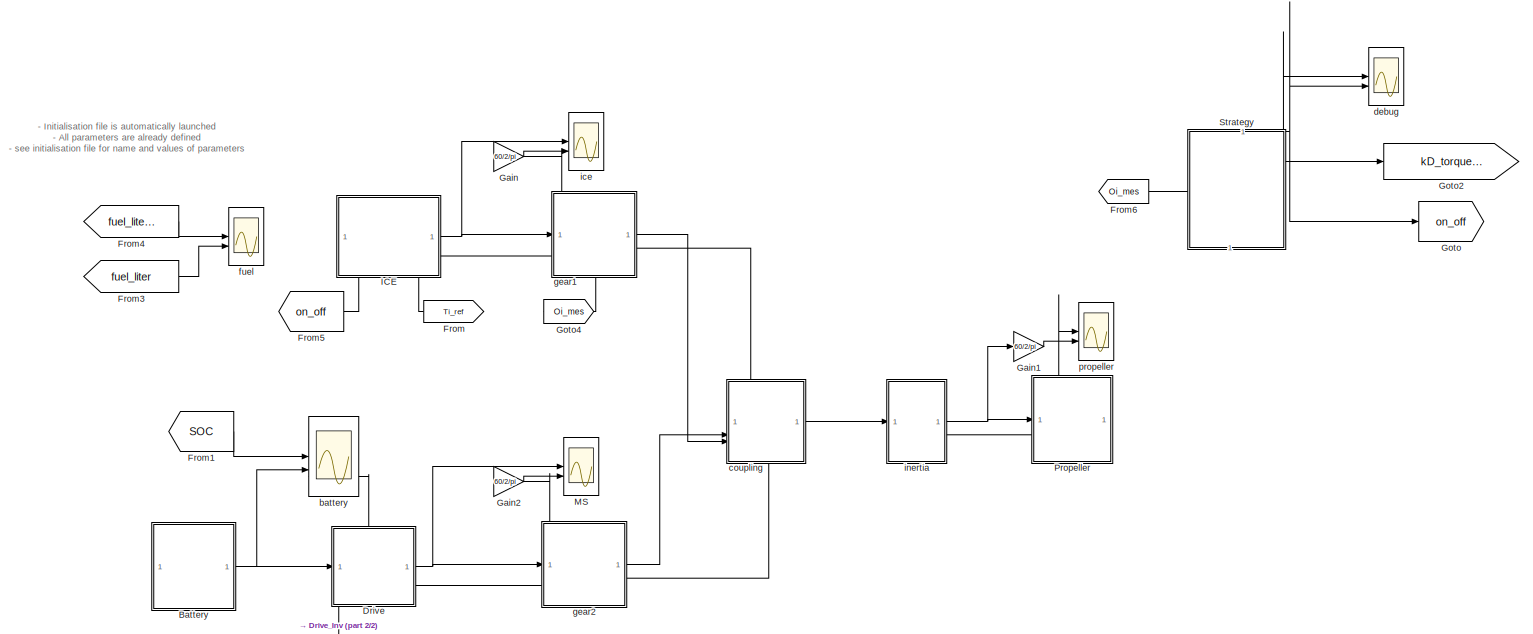
[diagram: root canvas - part 1/2, full width, middle band]
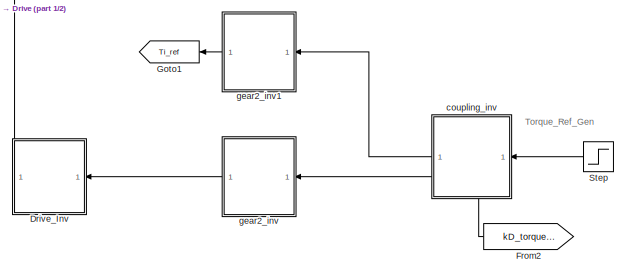
[diagram: root canvas - part 2/2, bottom center region]
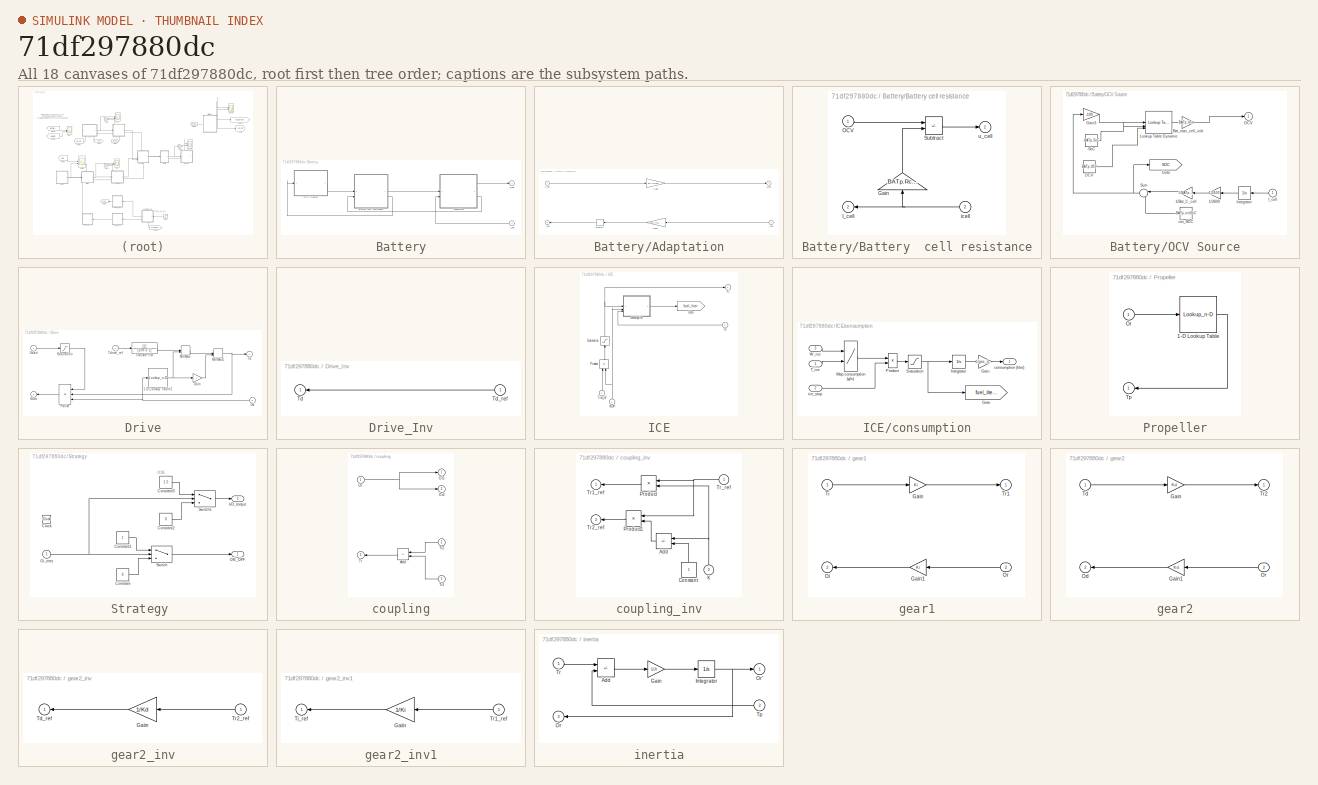
[diagram: thumbnail index - all 18 canvases of the model, root first then tree order]
MODEL slx_71df297880dc
KIND model
CONFIG AbsTol = auto
CONFIG EnableMultiTasking = on
CONFIG FixedStep = 1e-3
CONFIG InitFcn = initialisation
CONFIG MaxStep = 0.1
CONFIG MinStep = auto
CONFIG RelTol = 1e-3
CONFIG SampleTimeConstraint = Unconstrained
CONFIG SolverName = ode45
CONFIG StartTime = 0
CONFIG StopTime = 200
BLOCK [SubSystem] Battery
  NameLocation = top
  PortSchema = {"entries":[{"content":{"sides":[{"content":{"connectorIds":[]},"type":"ConnectorPlacement.EquallySpacedRectSide","uuid":"04262c61-29d9-4e8b-9c1d-2ecf83c8944f"},{"content":{"connectorIds":["Out1","In1"],"side":"RIGHT"},"type":"ConnectorPlacement.EquallySpacedRectSide","uuid":"634c1e8e-7966-43a8-9b77-1c6e134a407e"},{"content":{"connectorIds":[],"side":"TOP"},"type":"ConnectorPlacement.EquallySpaced...<+385ch>
BLOCK [SubSystem] Battery/Adaptation
  AncestorBlock = simulink/REM/EA
BLOCK [Gain] Battery/Adaptation/Gain
  Gain = BATp.ns
BLOCK [Gain] Battery/Adaptation/Gain1
  Gain = 1/BATp.np
  NameLocation = top
BLOCK [Inport] Battery/Adaptation/I_bat
  NameLocation = top
  Port = 2
BLOCK [Memory] Battery/Adaptation/Memory
BLOCK [Outport] Battery/Adaptation/i_cell
  InitialOutput = 0
  NameLocation = top
  Port = 2
BLOCK [Outport] Battery/Adaptation/u_bat
  InitialOutput = 0
BLOCK [Inport] Battery/Adaptation/u_cell
BLOCK [SubSystem] Battery/Battery  cell resistance
  AncestorBlock = simulink/REM/EC Elec
BLOCK [Gain] Battery/Battery  cell resistance/Gain
  Gain = BATp.Rcell
  NameLocation = right
BLOCK [Outport] Battery/Battery  cell resistance/I_cell
  InitialOutput = 0
  NameLocation = top
  Port = 2
BLOCK [Inport] Battery/Battery  cell resistance/OCV
BLOCK [Sum] Battery/Battery  cell resistance/Subtract
  IconShape = rectangular
  Inputs = +-
BLOCK [Inport] Battery/Battery  cell resistance/icell
  NameLocation = top
  Port = 2
BLOCK [Outport] Battery/Battery  cell resistance/u_cell
  InitialOutput = 0
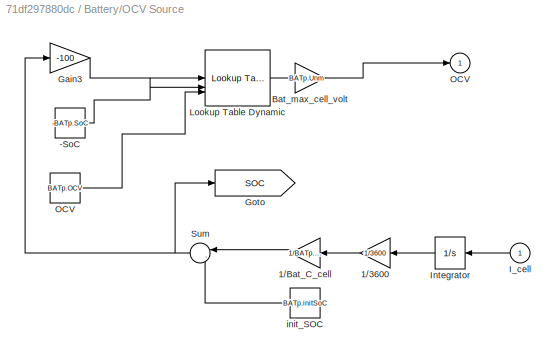
BLOCK [SubSystem] Battery/OCV Source
  AncestorBlock = simulink/REM/SE
BLOCK [Constant] Battery/OCV Source/-SoC
  Value = -BATp.SoC
BLOCK [Gain] Battery/OCV Source/1//3600
  Gain = 1/3600
  NameLocation = top
BLOCK [Gain] Battery/OCV Source/1//Bat_C_cell
  Gain = 1/BATp.Ccell
  NameLocation = top
BLOCK [Gain] Battery/OCV Source/Bat_max_cell_volt
  Gain = BATp.Unm
  NameLocation = top
BLOCK [Gain] Battery/OCV Source/Gain3
  Gain = -100
BLOCK [Goto] Battery/OCV Source/Goto
  GotoTag = SOC
  TagVisibility = global
BLOCK [Inport] Battery/OCV Source/I_cell 
  NameLocation = top
BLOCK [Integrator] Battery/OCV Source/Integrator
  NameLocation = top
BLOCK [Reference] Battery/OCV Source/Lookup Table Dynamic  REF=simulink/Lookup
Tables/Lookup
Table
Dynamic
  SourceBlock = simulink/Lookup\nTables/Lookup\nTable\nDynamic
  SourceType = Lookup Table Dynamic
BLOCK [Outport] Battery/OCV Source/OCV
  InitialOutput = 0
BLOCK [Constant] Battery/OCV Source/OCV 
  Value = BATp.OCV
BLOCK [Sum] Battery/OCV Source/Sum
  Inputs = |-+
  NameLocation = top
BLOCK [Constant] Battery/OCV Source/init_SOC
  NameLocation = top
  Value = BATp.initSoC
BLOCK [Inport] Battery/i_bat
  NameLocation = top
BLOCK [Outport] Battery/u_bat
  InitialOutput = 0
  NameLocation = top
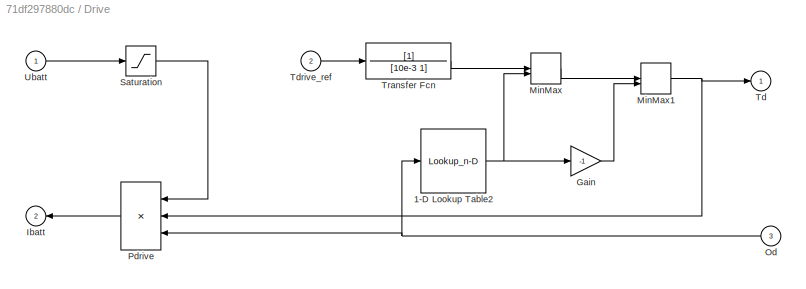
BLOCK [SubSystem] Drive
  PortSchema = {"entries":[{"content":{"sides":[{"content":{"connectorIds":["In1","Out2"]},"type":"ConnectorPlacement.EquallySpacedRectSide","uuid":"0136f92c-2474-4b15-9e94-a810dbb8344b"},{"content":{"connectorIds":["Out1","In3"],"side":"RIGHT"},"type":"ConnectorPlacement.EquallySpacedRectSide","uuid":"03ae7c30-e7d0-47d2-befe-60de862c4bfe"},{"content":{"connectorIds":[],"side":"TOP"},"type":"ConnectorPlacement.E...<+546ch>
BLOCK [Lookup_n-D] Drive/1-D Lookup Table2
  BreakpointsForDimension1 = EMp.Odrive
  InputPortMap = u0
  InternalRulePriority = Speed
  NumberOfTableDimensions = 1
  RndMeth = Simplest
  Table = EMp.Tmax
BLOCK [Gain] Drive/Gain
  Gain = -1
BLOCK [Outport] Drive/Ibatt
  InitialOutput = 0
  Port = 2
  VectorParamsAs1DForOutWhenUnconnected = off
BLOCK [MinMax] Drive/MinMax
  Inputs = 2
BLOCK [MinMax] Drive/MinMax1
  Function = max
  Inputs = 2
BLOCK [Inport] Drive/Od
  Port = 3
BLOCK [Product] Drive/Pdrive
  Inputs = /**
  NameLocation = top
BLOCK [Saturate] Drive/Saturation
  LowerLimit = 10.0
  UpperLimit = Inf
BLOCK [Outport] Drive/Td
  InitialOutput = 0
  VectorParamsAs1DForOutWhenUnconnected = off
BLOCK [Inport] Drive/Tdrive_ref
  NameLocation = top
  Port = 2
BLOCK [TransferFcn] Drive/Transfer Fcn
  Denominator = [10e-3 1]
BLOCK [Inport] Drive/Ubatt
BLOCK [SubSystem] Drive_Inv
  PortSchema = {"entries":[{"content":{"sides":[{"content":{"connectorIds":["In1"]},"type":"ConnectorPlacement.EquallySpacedRectSide","uuid":"04262c61-29d9-4e8b-9c1d-2ecf83c8944f"},{"content":{"connectorIds":[],"side":"RIGHT"},"type":"ConnectorPlacement.EquallySpacedRectSide","uuid":"634c1e8e-7966-43a8-9b77-1c6e134a407e"},{"content":{"connectorIds":["Out1"],"side":"TOP"},"type":"ConnectorPlacement.EquallySpacedR...<+384ch>
BLOCK [Outport] Drive_Inv/Td
  InitialOutput = 0
  VectorParamsAs1DForOutWhenUnconnected = off
BLOCK [Inport] Drive_Inv/Td_ref
  NameLocation = top
BLOCK [From] From
  GotoTag = Ti_ref
  TagVisibility = global
BLOCK [From] From1
  GotoTag = SOC
  TagVisibility = global
BLOCK [From] From2
  GotoTag = kD_torque_ref
  NameLocation = top
  TagVisibility = global
BLOCK [From] From3
  GotoTag = fuel_liter
  TagVisibility = global
BLOCK [From] From4
  GotoTag = fuel_liter_gps
  TagVisibility = global
BLOCK [From] From5
  GotoTag = on_off
  TagVisibility = global
BLOCK [From] From6
  GotoTag = Oi_mes
  TagVisibility = global
BLOCK [Gain] Gain
  Gain = 60/2/pi
BLOCK [Gain] Gain1
  Gain = 60/2/pi
BLOCK [Gain] Gain2
  Gain = 60/2/pi
BLOCK [Goto] Goto
  GotoTag = on_off
  TagVisibility = global
BLOCK [Goto] Goto1
  GotoTag = Ti_ref
  NameLocation = top
  TagVisibility = global
BLOCK [Goto] Goto2
  GotoTag = kD_torque_ref
  TagVisibility = global
BLOCK [Goto] Goto4
  GotoTag = Oi_mes
  TagVisibility = global
BLOCK [SubSystem] ICE
  PortSchema = {"entries":[{"content":{"sides":[{"content":{"connectorIds":[]},"type":"ConnectorPlacement.EquallySpacedRectSide","uuid":"c473ca53-b8b5-4bc1-98f4-3eae767e6b93"},{"content":{"connectorIds":["Out1","In3"],"side":"RIGHT"},"type":"ConnectorPlacement.EquallySpacedRectSide","uuid":"3221b5d7-f1e1-4c42-88b5-7a99972d45da"},{"content":{"connectorIds":[],"side":"TOP"},"type":"ConnectorPlacement.EquallySpaced...<+540ch>
BLOCK [Goto] ICE/Goto
  GotoTag = fuel_liter
  TagVisibility = global
BLOCK [Inport] ICE/Oi
  Port = 3
BLOCK [Product] ICE/Product
  NameLocation = right
  RndMeth = Zero
BLOCK [Saturate] ICE/Saturation
  LowerLimit = 0
  NameLocation = right
  UpperLimit = 102
BLOCK [Outport] ICE/Ti
  InitialOutput = 0
  NameLocation = top
  VectorParamsAs1DForOutWhenUnconnected = off
BLOCK [Inport] ICE/Tice_ref
  NameLocation = left
  Port = 2
BLOCK [SubSystem] ICE/consumption
BLOCK [Gain] ICE/consumption/Gain
  Gain = 1/gas_dens
  OutDataTypeStr = Inherit: Same as input
  ParamDataTypeStr = Inherit: Same as input
  SaturateOnIntegerOverflow = on
BLOCK [Goto] ICE/consumption/Goto
  GotoTag = fuel_liter_gps
  TagVisibility = global
BLOCK [Integrator] ICE/consumption/Integrator
  LowerSaturationLimit = 0
BLOCK [Lookup2D] ICE/consumption/Map consumption (g//s)
  ColumnIndex = ICE.Torque
  RowIndex = ICE.Omega
  Table = ICE.Fuel_consumption
BLOCK [Product] ICE/consumption/Product
  RndMeth = Zero
BLOCK [Saturate] ICE/consumption/Saturation
  LowerLimit = 0
  UpperLimit = Inf
BLOCK [Inport] ICE/consumption/T_ice
BLOCK [Inport] ICE/consumption/W_ice
  NameLocation = top
  Port = 3
BLOCK [Outport] ICE/consumption/consumption (liter)
  InitialOutput = 0
  VectorParamsAs1DForOutWhenUnconnected = off
BLOCK [Inport] ICE/consumption/ice_stop
  Port = 2
BLOCK [Inport] ICE/on_off
  NameLocation = right
BLOCK [Scope] MS
  ActiveDisplayYMaximum = 46.04942
  ActiveDisplayYMinimum = -14.00192
  DataLoggingVariableName = ScopeData1
  Floating = off
  GraphicalSettings = {"GraphicalSettings":{"LegacySettings":true,"Style":{"AxesScalingProperties":{"ScaleAxesLimitsAtStop":false},"Style":{"AxesColor":"[0 0 0]","ChannelNames":["",""],"ColorOrder":"[1 1 0.0666666666666667;0.0745098039215686 0.623529411764706 1;1 0.411764705882353 0.16078431372549;0.392156862745098 0.831372549019608 0.0745098039215686;0.717647058823529 0.274509803921569 1;0.0588235294117647 1 1;1 0.074...<+455ch>
  LayoutDimensionsString = [2 1]
  MultipleDisplayCache = [{"MaxYLimMag":46.04942,"MaxYLimReal":46.04942,"MinYLimMag":0,"MinYLimReal":-14.00192,"PlotAsMagnitudePhase":false,"ShowGrid":true,"ShowLegend":false,"Title":"Torque (Nm)","YLabel":""},{"MaxYLimMag":10,"MaxYLimReal":3389.30467,"MinYLimMag":0,"MinYLimReal":3348.13549,"PlotAsMagnitudePhase":false,"ShowGrid":true,"ShowLegend":false,"Title":"Angular Velocity (RPM)","YLabel":""}]
  NumInputPorts = 2
  Title = Torque (Nm)
  WasSavedAsWebScope = on
  WindowPosition = [2653 314 560 420]
BLOCK [SubSystem] Propeller
  PortSchema = {"entries":[{"content":{"sides":[{"content":{"connectorIds":["In1","Out1"]},"type":"ConnectorPlacement.EquallySpacedRectSide","uuid":"04262c61-29d9-4e8b-9c1d-2ecf83c8944f"},{"content":{"connectorIds":[],"side":"RIGHT"},"type":"ConnectorPlacement.EquallySpacedRectSide","uuid":"634c1e8e-7966-43a8-9b77-1c6e134a407e"},{"content":{"connectorIds":[],"side":"TOP"},"type":"ConnectorPlacement.EquallySpaced...<+385ch>
BLOCK [Lookup_n-D] Propeller/1-D Lookup Table
  BreakpointsForDimension1 = Oprop
  InputPortMap = u0
  InternalRulePriority = Speed
  NumberOfTableDimensions = 1
  RndMeth = Simplest
  Table = Tprop
BLOCK [Inport] Propeller/Or
BLOCK [Outport] Propeller/Tp
  InitialOutput = 0
  NameLocation = top
  VectorParamsAs1DForOutWhenUnconnected = off
BLOCK [Step] Step
  After = 80
  NameLocation = top
  SampleTime = 0
  Time = 10
BLOCK [SubSystem] Strategy 
  PortSchema = {"entries":[{"content":{"sides":[{"content":{},"type":"ConnectorPlacement.EquallySpacedRectSide","uuid":"63c31aab-ea26-4764-93d2-efdab5f0aed9"},{"content":{"side":"RIGHT"},"type":"ConnectorPlacement.EquallySpacedRectSide","uuid":"5340923b-eca1-4381-b70a-945b4f8fbb4d"},{"content":{"connectorIds":["In1"],"side":"TOP"},"type":"ConnectorPlacement.EquallySpacedRectSide","uuid":"634b20be-49b0-444c-aa49-...<+356ch>
BLOCK [Clock] Strategy /Clock
BLOCK [Constant] Strategy /Constant
  Value = 0
BLOCK [Constant] Strategy /Constant1
BLOCK [Constant] Strategy /Constant2
  Value = 0
BLOCK [Constant] Strategy /Constant3
  Value = 1.5
BLOCK [Outport] Strategy /ON_OFF
BLOCK [Inport] Strategy /Oi_mes
BLOCK [Switch] Strategy /Switch
  InputSameDT = off
  SaturateOnIntegerOverflow = off
  Threshold = 104.7
BLOCK [Switch] Strategy /Switch1
  InputSameDT = off
  SaturateOnIntegerOverflow = off
  Threshold = 104.7
BLOCK [Outport] Strategy /kD_torque
  Port = 2
BLOCK [Scope] battery
  ActiveDisplayYMaximum = 0.91486100012820593
  ActiveDisplayYMinimum = 0.89921177350309167
  Floating = off
  GraphicalSettings = {"Style":{"BackgroundColor":[0.12941176470588237,0.12941176470588237,0.12941176470588237],"AxesColor":[0.07058823529411765,0.07058823529411765,0.07058823529411765],"LabelsColor":[0.8509803921568627,0.8509803921568627,0.8509803921568627],"PreserveColors":false,"Visible":[true,true,true],"LineStyle":["-","-","-"],"LineWidth":[1.5,1.5,1.5],"BarWidth":[0.9,0.9,0.9],"LineColor":["auto","auto","auto"],"...<+2884ch>
  LayoutDimensionsString = [3 1]
  MultipleDisplayCache = [{"MaxYLimMag":0.90908566757220111,"MaxYLimReal":0.91486100012820593,"MinYLimMag":0.89897390048017589,"MinYLimReal":0.89921177350309167,"PlotAsMagnitudePhase":false,"ShowGrid":true,"ShowLegend":false,"Title":"SOC (-)","YLabel":""},{"MaxYLimMag":387.42316799296452,"MaxYLimReal":387.42316799296452,"MinYLimMag":383.356557148129,"MinYLimReal":383.356557148129,"PlotAsMagnitudePhase":false,"ShowGrid":tr...<+281ch>
  NumInputPorts = 3
  ScopeFrameLocation = window
  Title = SOC (-)
  Visible = on
  WasSavedAsWebScope = on
  WindowPosition = [422.000000,272.000000,560.000000,420.000000,]
BLOCK [SubSystem] coupling
  PortSchema = {"entries":[{"content":{"sides":[{"content":{"connectorIds":["In1","Out3"]},"type":"ConnectorPlacement.EquallySpacedRectSide","uuid":"a0cc6eb3-0f35-4a31-afc0-a3cae9b9d5bb"},{"content":{"connectorIds":["Out1","In2","Out2","In3"],"side":"RIGHT"},"type":"ConnectorPlacement.EquallySpacedRectSide","uuid":"f0fc86c1-6f18-402b-9eea-d081ace87e62"},{"content":{"connectorIds":[],"side":"TOP"},"type":"Connect...<+266ch>
BLOCK [Sum] coupling/Add
  IconShape = rectangular
  NameLocation = top
BLOCK [Inport] coupling/Or
BLOCK [Outport] coupling/Or1
  InitialOutput = 0
  VectorParamsAs1DForOutWhenUnconnected = off
BLOCK [Outport] coupling/Or2
  InitialOutput = 0
  Port = 2
  VectorParamsAs1DForOutWhenUnconnected = off
BLOCK [Outport] coupling/Tr
  InitialOutput = 0
  Port = 3
  VectorParamsAs1DForOutWhenUnconnected = off
BLOCK [Inport] coupling/Tr1
  NameLocation = top
  Port = 3
BLOCK [Inport] coupling/Tr2
  NameLocation = top
  Port = 2
BLOCK [SubSystem] coupling_inv
  NameLocation = top
  PortSchema = {"entries":[{"content":{"sides":[{"content":{"connectorIds":["In1"]},"type":"ConnectorPlacement.EquallySpacedRectSide","uuid":"b9cb5e2e-d323-42b7-849c-39be921832eb"},{"content":{"connectorIds":["Out1","Out2"],"side":"RIGHT"},"type":"ConnectorPlacement.EquallySpacedRectSide","uuid":"457911f2-4e07-4896-a1c0-9331a364b989"},{"content":{"side":"TOP"},"type":"ConnectorPlacement.EquallySpacedRectSide","u...<+378ch>
BLOCK [Sum] coupling_inv/Add
  IconShape = rectangular
  Inputs = -+
  NameLocation = top
BLOCK [Constant] coupling_inv/Constant
  NameLocation = right
BLOCK [Inport] coupling_inv/K
  Port = 2
BLOCK [Product] coupling_inv/Product
  NameLocation = top
BLOCK [Product] coupling_inv/Product1
  NameLocation = top
BLOCK [Outport] coupling_inv/Tr1_ref
  InitialOutput = 0
BLOCK [Outport] coupling_inv/Tr2_ref
  InitialOutput = 0
  Port = 2
BLOCK [Inport] coupling_inv/Tr_ref
BLOCK [Scope] debug
  ActiveDisplayString = 2
  ActiveDisplayYMaximum = 1.1719714156079855
  ActiveDisplayYMinimum = -0.20615358439201459
  DataLoggingVariableName = ScopeData3
  Floating = off
  GraphicalSettings = {"Style":{"BackgroundColor":[0.12941176470588237,0.12941176470588237,0.12941176470588237],"AxesColor":[0.07058823529411765,0.07058823529411765,0.07058823529411765],"LabelsColor":[0.8509803921568627,0.8509803921568627,0.8509803921568627],"PreserveColors":false,"Visible":[true,true],"LineStyle":["-","-"],"LineWidth":[1.5,1.5],"BarWidth":[0.9,0.9],"LineColor":["auto","auto"],"LineFaceAlpha":[1,1],"Li...<+2384ch>
  LayoutDimensionsString = [2 1]
  MultipleDisplayCache = [{"MaxYLimMag":0.9,"MaxYLimReal":0.9,"MinYLimMag":0,"MinYLimReal":-0.099999999999999978,"PlotAsMagnitudePhase":false,"ShowGrid":true,"ShowLegend":false,"Title":"K motors","YLabel":""},{"MaxYLimMag":1.125,"MaxYLimReal":1.1719714156079855,"MinYLimMag":0,"MinYLimReal":-0.20615358439201459,"PlotAsMagnitudePhase":false,"ShowGrid":true,"ShowLegend":false,"Title":"ICE_enabled","YLabel":""}]
  NumInputPorts = 2
  ScopeFrameLocation = window
  Title = ICE_enabled
  WasSavedAsWebScope = on
  WindowPosition = [172.000000,63.000000,688.000000,697.000000,]
BLOCK [Scope] fuel
  ActiveDisplayYMaximum = 1.24215
  ActiveDisplayYMinimum = -0.13802
  DataLoggingVariableName = ScopeData1
  Floating = off
  GraphicalSettings = {"GraphicalSettings":{"LegacySettings":true,"Style":{"Style":{"AxesColor":"[0 0 0]","ChannelNames":["",""],"ColorOrder":"[1 1 0.0666666666666667;0.0745098039215686 0.623529411764706 1;1 0.411764705882353 0.16078431372549;0.392156862745098 0.831372549019608 0.0745098039215686;0.717647058823529 0.274509803921569 1;0.0588235294117647 1 1;1 0.0745098039215686 0.650980392156863]","CurrentConfiguration"...<+374ch>
  LayoutDimensionsString = [2 1]
  MultipleDisplayCache = [{"MaxYLimMag":2.24415,"MaxYLimReal":1.24215,"MinYLimMag":0,"MinYLimReal":-0.13802,"PlotAsMagnitudePhase":false,"ShowGrid":true,"ShowLegend":false,"Title":"Fuel cons. (g\/s)","YLabel":""},{"MaxYLimMag":0.27339,"MaxYLimReal":0.27339,"MinYLimMag":0,"MinYLimReal":-0.03038,"PlotAsMagnitudePhase":false,"ShowGrid":true,"ShowLegend":false,"Title":"Fuel Cons (l)","YLabel":""}]
  NumInputPorts = 2
  Title = Fuel cons. (g/s)
  WasSavedAsWebScope = on
  WindowPosition = [2889 270 560 420]
BLOCK [SubSystem] gear1
  PortSchema = {"entries":[{"content":{"sides":[{"content":{"connectorIds":["In1","Out2"]},"type":"ConnectorPlacement.EquallySpacedRectSide","uuid":"326d5ef2-2214-4908-8fc2-a754f41fc898"},{"content":{"connectorIds":["Out1","In2"],"side":"RIGHT"},"type":"ConnectorPlacement.EquallySpacedRectSide","uuid":"fc3c24cf-fc6d-45b2-8f10-8df449b5a24f"},{"content":{"connectorIds":[],"side":"TOP"},"type":"ConnectorPlacement.E...<+397ch>
BLOCK [Gain] gear1/Gain
  Gain = Ki
BLOCK [Gain] gear1/Gain1
  Gain = Ki
  NameLocation = top
BLOCK [Outport] gear1/Oi
  InitialOutput = 0
  Port = 2
  VectorParamsAs1DForOutWhenUnconnected = off
BLOCK [Inport] gear1/Or
  Port = 2
BLOCK [Inport] gear1/Ti
BLOCK [Outport] gear1/Tr1
  InitialOutput = 0
  VectorParamsAs1DForOutWhenUnconnected = off
BLOCK [SubSystem] gear2
  PortSchema = {"entries":[{"content":{"sides":[{"content":{"connectorIds":["In1","Out2"]},"type":"ConnectorPlacement.EquallySpacedRectSide","uuid":"326d5ef2-2214-4908-8fc2-a754f41fc898"},{"content":{"connectorIds":["Out1","In2"],"side":"RIGHT"},"type":"ConnectorPlacement.EquallySpacedRectSide","uuid":"fc3c24cf-fc6d-45b2-8f10-8df449b5a24f"},{"content":{"connectorIds":[],"side":"TOP"},"type":"ConnectorPlacement.E...<+397ch>
BLOCK [Gain] gear2/Gain
  Gain = Kd
BLOCK [Gain] gear2/Gain1
  Gain = Kd
  NameLocation = top
BLOCK [Outport] gear2/Od
  InitialOutput = 0
  Port = 2
  VectorParamsAs1DForOutWhenUnconnected = off
BLOCK [Inport] gear2/Or
  Port = 2
BLOCK [Inport] gear2/Td
BLOCK [Outport] gear2/Tr2
  InitialOutput = 0
  VectorParamsAs1DForOutWhenUnconnected = off
BLOCK [SubSystem] gear2_inv
BLOCK [Gain] gear2_inv/Gaiin
  Gain = 1/Kd
  NameLocation = top
BLOCK [Outport] gear2_inv/Td_ref
  InitialOutput = 0
  NameLocation = top
  VectorParamsAs1DForOutWhenUnconnected = off
BLOCK [Inport] gear2_inv/Tr2_ref
  NameLocation = top
BLOCK [SubSystem] gear2_inv1
BLOCK [Gain] gear2_inv1/Gaiin
  Gain = 1/Ki
  NameLocation = top
BLOCK [Outport] gear2_inv1/Ti_ref
  InitialOutput = 0
  NameLocation = top
  VectorParamsAs1DForOutWhenUnconnected = off
BLOCK [Inport] gear2_inv1/Tr1_ref
  NameLocation = top
BLOCK [Scope] ice
  ActiveDisplayYMaximum = 81
  ActiveDisplayYMinimum = -9
  DataLoggingVariableName = ScopeData1
  Floating = off
  GraphicalSettings = {"GraphicalSettings":{"LegacySettings":true,"Style":{"AxesScalingProperties":{"ScaleAxesLimitsAtStop":false},"Style":{"AxesColor":"[0 0 0]","ChannelNames":["",""],"ColorOrder":"[1 1 0.0666666666666667;0.0745098039215686 0.623529411764706 1;1 0.411764705882353 0.16078431372549;0.392156862745098 0.831372549019608 0.0745098039215686;0.717647058823529 0.274509803921569 1;0.0588235294117647 1 1;1 0.074...<+455ch>
  LayoutDimensionsString = [2 1]
  MultipleDisplayCache = [{"MaxYLimMag":101.25,"MaxYLimReal":81,"MinYLimMag":0,"MinYLimReal":-9,"PlotAsMagnitudePhase":false,"ShowGrid":true,"ShowLegend":false,"Title":"Torque (Nm)","YLabel":""},{"MaxYLimMag":2525.78111,"MaxYLimReal":2525.78111,"MinYLimMag":0,"MinYLimReal":-280.64235,"PlotAsMagnitudePhase":false,"ShowGrid":true,"ShowLegend":false,"Title":"Angular Velocity (RPM)","YLabel":""}]
  NumInputPorts = 2
  Title = Torque (Nm)
  WasSavedAsWebScope = on
  WindowPosition = [2067 171 688 697]
BLOCK [SubSystem] inertia
  PortSchema = {"entries":[{"content":{"sides":[{"content":{"connectorIds":["In1","Out2"]},"type":"ConnectorPlacement.EquallySpacedRectSide","uuid":"ce6d3bac-983c-4cc2-8cf0-29bd76c88970"},{"content":{"connectorIds":["Out1","In2"],"side":"RIGHT"},"type":"ConnectorPlacement.EquallySpacedRectSide","uuid":"5515666e-487b-4d04-97a1-137c298a6b81"},{"content":{"side":"TOP"},"type":"ConnectorPlacement.EquallySpacedRectSi...<+235ch>
BLOCK [Sum] inertia/Add
  IconShape = rectangular
  Inputs = +-
BLOCK [Gain] inertia/Gain
  Gain = 1/Jr
BLOCK [Integrator] inertia/Integrator
BLOCK [Outport] inertia/Or
  InitialOutput = 0
  NameLocation = top
  Port = 2
BLOCK [Outport] inertia/Or'
  InitialOutput = 0
  NameLocation = top
BLOCK [Inport] inertia/Tp
  NameLocation = top
  Port = 2
BLOCK [Inport] inertia/Tr
  NameLocation = top
BLOCK [Scope] propeller
  ActiveDisplayYMaximum = 89.999960896765117
  ActiveDisplayYMinimum = -9.9999956551961535
  DataLoggingVariableName = ScopeData2
  Floating = off
  GraphicalSettings = {"Style":{"BackgroundColor":[0.12941176470588237,0.12941176470588237,0.12941176470588237],"AxesColor":[0.07058823529411765,0.07058823529411765,0.07058823529411765],"LabelsColor":[0.8509803921568627,0.8509803921568627,0.8509803921568627],"PreserveColors":false,"Visible":[true,true],"LineStyle":["-","-"],"LineWidth":[1.5,1.5],"BarWidth":[0.9,0.9],"LineColor":["auto","auto"],"LineFaceAlpha":[1,1],"Li...<+2445ch>
  LayoutDimensionsString = [2 1]
  MultipleDisplayCache = [{"MaxYLimMag":89.999960896765117,"MaxYLimReal":89.999960896765117,"MinYLimMag":0,"MinYLimReal":-9.9999956551961535,"PlotAsMagnitudePhase":false,"ShowGrid":true,"ShowLegend":false,"Title":"Torque (Nm)","YLabel":""},{"MaxYLimMag":1892.8988737960206,"MaxYLimReal":1892.8988737960206,"MinYLimMag":0,"MinYLimReal":-210.32209708844667,"PlotAsMagnitudePhase":false,"ShowGrid":true,"ShowLegend":false,"Title...<+40ch>
  NumInputPorts = 2
  ScopeFrameLocation = window
  Title = Torque (Nm)
  WasSavedAsWebScope = on
  WindowPosition = [621.000000,66.000000,688.000000,697.000000,]
ANNOTATION (root): - Initialisation file is automatically launched - All parameters are already defined - see initialisation file for name and values of parameters
ANNOTATION (root): Torque_Ref_Gen
ANNOTATION Strategy : 0.95
LINE Battery/Adaptation:1 -> Battery/u_bat:1
LINE Battery/Adaptation:2 -> Battery/Battery  cell resistance:2
LINE Battery/Battery  cell resistance:1 -> Battery/Adaptation:1
LINE Battery/Battery  cell resistance:2 -> Battery/OCV Source:1
LINE Battery/OCV Source:1 -> Battery/Battery  cell resistance:1
LINE Battery/i_bat:1 -> Battery/Adaptation:2
NET Battery:1 -> Drive:1, battery:2
NET Drive/1-D Lookup Table2:1 -> Drive/Gain:1, Drive/MinMax:2
LINE Drive/Gain:1 -> Drive/MinMax1:2
NET Drive/MinMax1:1 -> Drive/Pdrive:2, Drive/Td:1
LINE Drive/MinMax:1 -> Drive/MinMax1:1
NET Drive/Od:1 -> Drive/1-D Lookup Table2:1, Drive/Pdrive:3
LINE Drive/Pdrive:1 -> Drive/Ibatt:1
LINE Drive/Saturation:1 -> Drive/Pdrive:1
LINE Drive/Tdrive_ref:1 -> Drive/Transfer Fcn:1
LINE Drive/Transfer Fcn:1 -> Drive/MinMax:1
LINE Drive/Ubatt:1 -> Drive/Saturation:1
NET Drive:1 -> MS:1, gear2:1
NET Drive:2 -> Battery:1, battery:3
LINE Drive_Inv/Td_ref:1 -> Drive_Inv/Td:1
LINE Drive_Inv:1 -> Drive:2
LINE From1:1 -> battery:1
LINE From2:1 -> coupling_inv:2
LINE From3:1 -> fuel:2
LINE From4:1 -> fuel:1
LINE From5:1 -> ICE:1
LINE From6:1 -> Strategy :1
LINE From:1 -> ICE:2
LINE Gain1:1 -> propeller:2
LINE Gain2:1 -> MS:2
LINE Gain:1 -> ice:2
LINE ICE/Oi:1 -> ICE/consumption:3
LINE ICE/Product:1 -> ICE/Saturation:1
NET ICE/Saturation:1 -> ICE/Ti:1, ICE/consumption:1
LINE ICE/Tice_ref:1 -> ICE/Product:1
LINE ICE/consumption/Gain:1 -> ICE/consumption/consumption (liter):1
LINE ICE/consumption/Integrator:1 -> ICE/consumption/Gain:1
LINE ICE/consumption/Map consumption (g//s):1 -> ICE/consumption/Product:1
LINE ICE/consumption/Product:1 -> ICE/consumption/Saturation:1
NET ICE/consumption/Saturation:1 -> ICE/consumption/Goto:1, ICE/consumption/Integrator:1
LINE ICE/consumption/T_ice:1 -> ICE/consumption/Map consumption (g//s):2
LINE ICE/consumption/W_ice:1 -> ICE/consumption/Map consumption (g//s):1
LINE ICE/consumption/ice_stop:1 -> ICE/consumption/Product:2
LINE ICE/consumption:1 -> ICE/Goto:1
NET ICE/on_off:1 -> ICE/Product:2, ICE/consumption:2
NET ICE:1 -> gear1:1, ice:1
LINE Propeller/1-D Lookup Table:1 -> Propeller/Tp:1
LINE Propeller/Or:1 -> Propeller/1-D Lookup Table:1
NET Propeller:1 -> inertia:2, propeller:1
LINE Step:1 -> coupling_inv:1
LINE Strategy /Constant1:1 -> Strategy /Switch:1
LINE Strategy /Constant2:1 -> Strategy /Switch1:3
LINE Strategy /Constant3:1 -> Strategy /Switch1:1
LINE Strategy /Constant:1 -> Strategy /Switch:3
NET Strategy /Oi_mes:1 -> Strategy /Switch1:2, Strategy /Switch:2
LINE Strategy /Switch1:1 -> Strategy /kD_torque:1
LINE Strategy /Switch:1 -> Strategy /ON_OFF:1
NET Strategy :1 -> Goto:1, debug:2
NET Strategy :2 -> Goto2:1, debug:1
LINE coupling/Add:1 -> coupling/Tr:1
NET coupling/Or:1 -> coupling/Or1:1, coupling/Or2:1
LINE coupling/Tr1:1 -> coupling/Add:2
LINE coupling/Tr2:1 -> coupling/Add:1
LINE coupling:1 -> gear2:2
LINE coupling:2 -> gear1:2
LINE coupling:3 -> inertia:1
LINE coupling_inv/Add:1 -> coupling_inv/Product1:2
LINE coupling_inv/Constant:1 -> coupling_inv/Add:2
NET coupling_inv/K:1 -> coupling_inv/Add:1, coupling_inv/Product:2
LINE coupling_inv/Product1:1 -> coupling_inv/Tr2_ref:1
LINE coupling_inv/Product:1 -> coupling_inv/Tr1_ref:1
NET coupling_inv/Tr_ref:1 -> coupling_inv/Product1:1, coupling_inv/Product:1
LINE coupling_inv:1 -> gear2_inv1:1
LINE coupling_inv:2 -> gear2_inv:1
LINE gear1/Gain1:1 -> gear1/Oi:1
LINE gear1/Gain:1 -> gear1/Tr1:1
LINE gear1/Or:1 -> gear1/Gain1:1
LINE gear1/Ti:1 -> gear1/Gain:1
LINE gear1:1 -> coupling:3
NET gear1:2 -> Gain:1, Goto4:1, ICE:3
LINE gear2/Gain1:1 -> gear2/Od:1
LINE gear2/Gain:1 -> gear2/Tr2:1
LINE gear2/Or:1 -> gear2/Gain1:1
LINE gear2/Td:1 -> gear2/Gain:1
LINE gear2:1 -> coupling:2
NET gear2:2 -> Drive:3, Gain2:1
LINE gear2_inv/Gaiin:1 -> gear2_inv/Td_ref:1
LINE gear2_inv/Tr2_ref:1 -> gear2_inv/Gaiin:1
LINE gear2_inv1/Gaiin:1 -> gear2_inv1/Ti_ref:1
LINE gear2_inv1/Tr1_ref:1 -> gear2_inv1/Gaiin:1
LINE gear2_inv1:1 -> Goto1:1
LINE gear2_inv:1 -> Drive_Inv:1
LINE inertia/Add:1 -> inertia/Gain:1
LINE inertia/Gain:1 -> inertia/Integrator:1
NET inertia/Integrator:1 -> inertia/Or':1, inertia/Or:1
LINE inertia/Tp:1 -> inertia/Add:2
LINE inertia/Tr:1 -> inertia/Add:1
NET inertia:1 -> Gain1:1, Propeller:1
LINE inertia:2 -> coupling:1
note: NET lines group one-source signal fan-out (src -> all destinations, sorted); 1:1 wires keep LINE
